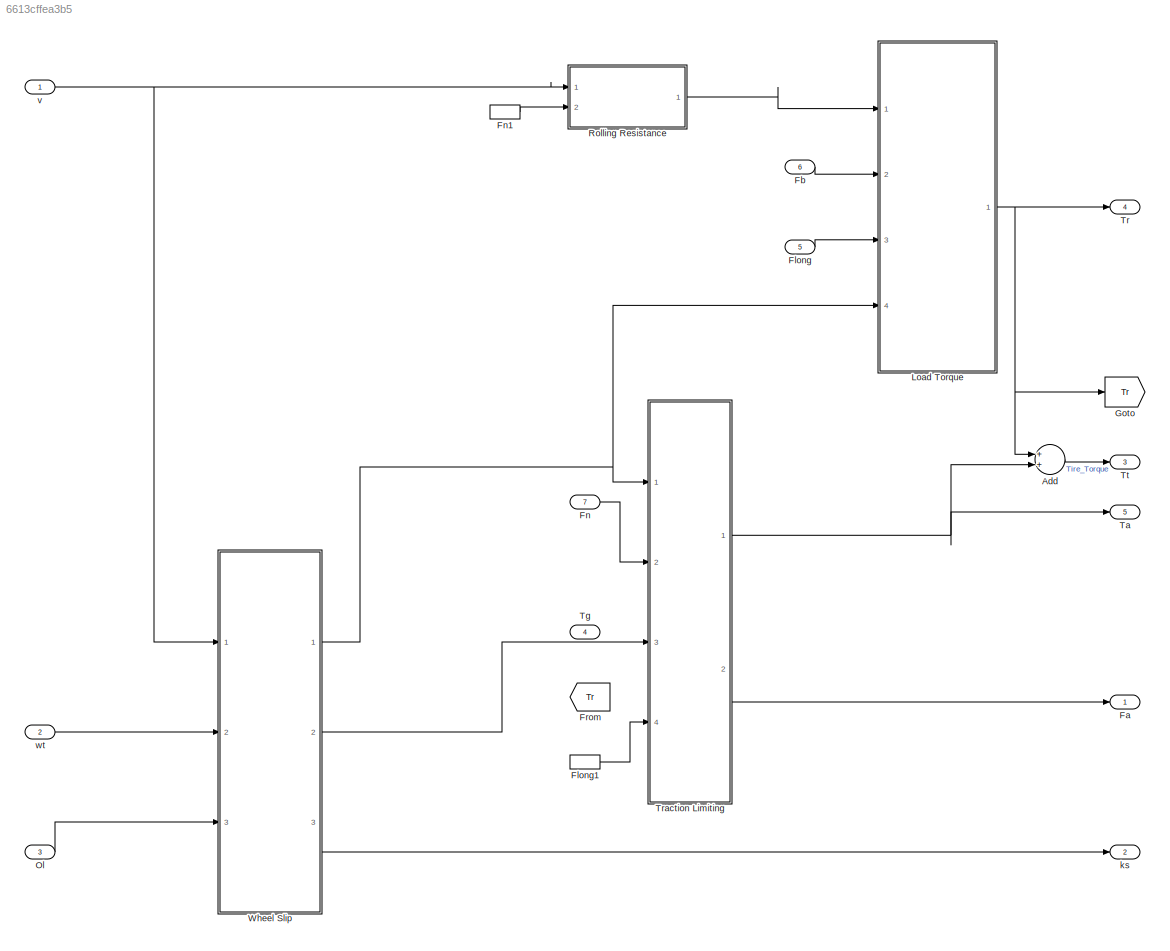
MODEL slx_6613cffea3b5
KIND model
WORKSPACE source: external: MAT-File  (data not in archive)
BLOCK [Sum] Add
  InputSameDT = off
  OutDataTypeStr = Inherit: Inherit via internal rule
  Ports = [2, 1]
  SaturateOnIntegerOverflow = off
BLOCK [Outport] Fa
  IconDisplay = Port number
BLOCK [Inport] Fb
  IconDisplay = Port number
  Port = 6
BLOCK [Inport] Flong
  IconDisplay = Port number
  Port = 5
BLOCK [InportShadow] Flong1
  IconDisplay = Port number
  Port = 5
BLOCK [Inport] Fn
  IconDisplay = Port number
  Port = 7
BLOCK [InportShadow] Fn1
  IconDisplay = Port number
  Port = 7
BLOCK [From] From
  GotoTag = Tr
BLOCK [Goto] Goto
  GotoTag = Tr
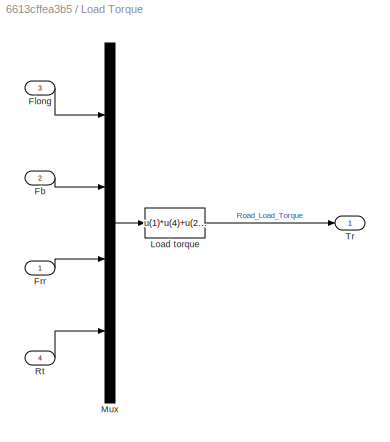
BLOCK [SubSystem] Load Torque
  Ports = [4, 1]
  RequestExecContextInheritance = off
BLOCK [Inport] Load Torque/Fb
  IconDisplay = Port number
  Port = 2
BLOCK [Inport] Load Torque/Flong
  IconDisplay = Port number
  Port = 3
BLOCK [Inport] Load Torque/Frr
  IconDisplay = Port number
BLOCK [Fcn] Load Torque/Load torque
  Expr = u(1)*u(4)+u(2)*rb+u(3)*u(4)
BLOCK [Mux] Load Torque/Mux
  DisplayOption = bar
  Ports = [4, 1]
BLOCK [Inport] Load Torque/Rt
  IconDisplay = Port number
  Port = 4
BLOCK [Outport] Load Torque/Tr
  IconDisplay = Port number
BLOCK [Inport] Ol
  IconDisplay = Port number
  Port = 3
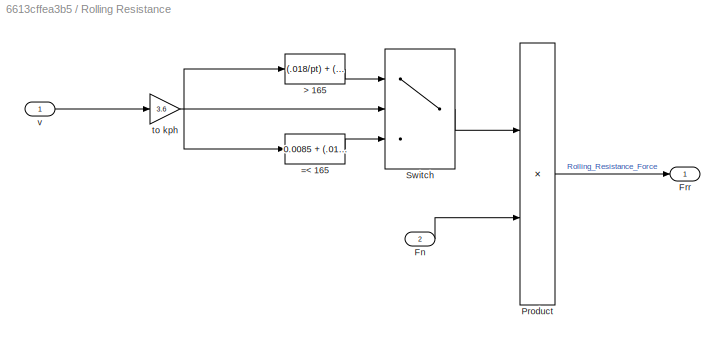
BLOCK [SubSystem] Rolling Resistance
  Ports = [2, 1]
  RequestExecContextInheritance = off
BLOCK [Fcn] Rolling Resistance/=< 165 
  Expr = 0.0085 + (.018/pt) + (1.59e-6/pt)*u(1)^2
BLOCK [Fcn] Rolling Resistance/> 165 
  Expr = (.018/pt) + (2.91e-6/pt)*u(1)^2
BLOCK [Inport] Rolling Resistance/Fn
  IconDisplay = Port number
  Port = 2
BLOCK [Outport] Rolling Resistance/Frr
  IconDisplay = Port number
BLOCK [Product] Rolling Resistance/Product
  InputSameDT = off
  OutDataTypeStr = Inherit: Inherit via internal rule
  Ports = [2, 1]
  RndMeth = Floor
  SaturateOnIntegerOverflow = off
BLOCK [Switch] Rolling Resistance/Switch
  Criteria = u2 > Threshold
  InputSameDT = off
  SaturateOnIntegerOverflow = off
  Threshold = 165
BLOCK [Gain] Rolling Resistance/to kph
  Gain = 3.6
  OutDataTypeStr = Inherit: Inherit via internal rule
  ParamDataTypeStr = Inherit: Inherit via internal rule
  SaturateOnIntegerOverflow = off
BLOCK [Inport] Rolling Resistance/v
  IconDisplay = Port number
BLOCK [Outport] Ta
  IconDisplay = Port number
  Port = 5
BLOCK [Inport] Tg
  IconDisplay = Port number
  Port = 4
BLOCK [Outport] Tr
  IconDisplay = Port number
  Port = 4
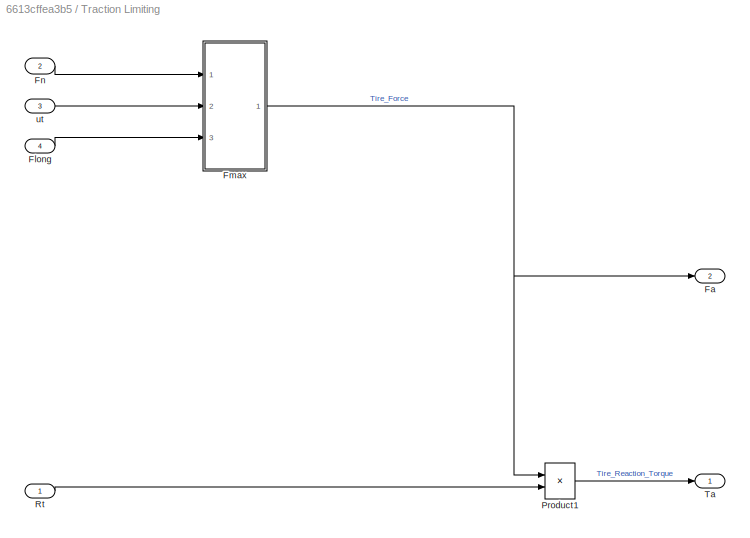
BLOCK [SubSystem] Traction Limiting
  Ports = [4, 2]
  RequestExecContextInheritance = off
BLOCK [Outport] Traction Limiting/Fa
  IconDisplay = Port number
  Port = 2
BLOCK [Inport] Traction Limiting/Flong
  IconDisplay = Port number
  Port = 4
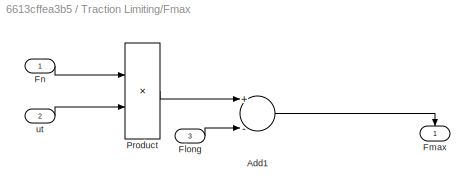
BLOCK [SubSystem] Traction Limiting/Fmax
  Ports = [3, 1]
  RequestExecContextInheritance = off
BLOCK [Sum] Traction Limiting/Fmax/Add1
  InputSameDT = off
  Inputs = +-
  OutDataTypeStr = Inherit: Inherit via internal rule
  Ports = [2, 1]
  SaturateOnIntegerOverflow = off
BLOCK [Inport] Traction Limiting/Fmax/Flong
  IconDisplay = Port number
  Port = 3
BLOCK [Outport] Traction Limiting/Fmax/Fmax
  IconDisplay = Port number
BLOCK [Inport] Traction Limiting/Fmax/Fn
  IconDisplay = Port number
BLOCK [Product] Traction Limiting/Fmax/Product
  InputSameDT = off
  OutDataTypeStr = Inherit: Inherit via internal rule
  Ports = [2, 1]
  RndMeth = Floor
  SaturateOnIntegerOverflow = off
BLOCK [Inport] Traction Limiting/Fmax/ut
  IconDisplay = Port number
  Port = 2
BLOCK [Inport] Traction Limiting/Fn
  IconDisplay = Port number
  Port = 2
BLOCK [Product] Traction Limiting/Product1
  InputSameDT = off
  OutDataTypeStr = Inherit: Inherit via internal rule
  Ports = [2, 1]
  RndMeth = Floor
  SaturateOnIntegerOverflow = off
BLOCK [Inport] Traction Limiting/Rt
  IconDisplay = Port number
BLOCK [Outport] Traction Limiting/Ta
  IconDisplay = Port number
BLOCK [Inport] Traction Limiting/ut
  IconDisplay = Port number
  Port = 3
BLOCK [Outport] Tt 
  IconDisplay = Port number
  Port = 3
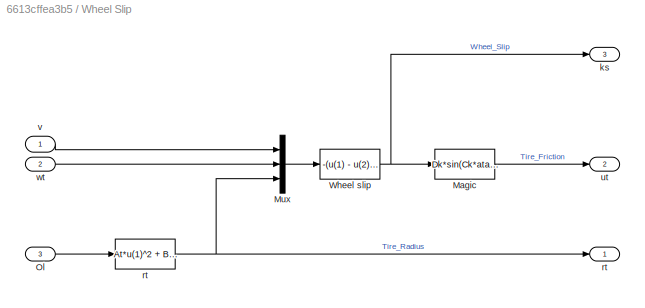
BLOCK [SubSystem] Wheel Slip 
  Ports = [3, 3]
  RequestExecContextInheritance = off
BLOCK [Fcn] Wheel Slip / rt
  Expr = At*u(1)^2 + Bt*u(1) + Ct
BLOCK [Fcn] Wheel Slip /Magic
  Expr = Dk*sin(Ck*atan(( Bk*u(1) - Ek*(Bk*u(1) - atan(Bk*u(1))))))
BLOCK [Mux] Wheel Slip /Mux
  DisplayOption = bar
  Inputs = 3
  Ports = [3, 1]
BLOCK [Inport] Wheel Slip /Ol
  IconDisplay = Port number
  Port = 3
BLOCK [Fcn] Wheel Slip /Wheel slip
  Expr = -(u(1) - u(2)*u(3))/(u(1))
BLOCK [Outport] Wheel Slip /ks
  IconDisplay = Port number
  Port = 3
BLOCK [Outport] Wheel Slip /rt
  IconDisplay = Port number
BLOCK [Outport] Wheel Slip /ut
  IconDisplay = Port number
  Port = 2
BLOCK [Inport] Wheel Slip /v
  IconDisplay = Port number
BLOCK [Inport] Wheel Slip /wt
  IconDisplay = Port number
  Port = 2
BLOCK [Outport] ks
  IconDisplay = Port number
  Port = 2
BLOCK [Inport] v
  IconDisplay = Port number
BLOCK [Inport] wt
  IconDisplay = Port number
  Port = 2
LINE Add:1 -> Tt :1
LINE Fb:1 -> Load Torque:2
LINE Flong1:1 -> Traction Limiting:4
LINE Flong:1 -> Load Torque:3
LINE Fn1:1 -> Rolling Resistance:2
LINE Fn:1 -> Traction Limiting:2
LINE Load Torque/Fb:1 -> Load Torque/Mux:2
LINE Load Torque/Flong:1 -> Load Torque/Mux:1
LINE Load Torque/Frr:1 -> Load Torque/Mux:3
LINE Load Torque/Load torque:1 -> Load Torque/Tr:1
LINE Load Torque/Mux:1 -> Load Torque/Load torque:1
LINE Load Torque/Rt:1 -> Load Torque/Mux:4
NET Load Torque:1 -> Add:1, Goto:1, Tr:1
LINE Ol:1 -> Wheel Slip :3
LINE Rolling Resistance/=< 165 :1 -> Rolling Resistance/Switch:3
LINE Rolling Resistance/> 165 :1 -> Rolling Resistance/Switch:1
LINE Rolling Resistance/Fn:1 -> Rolling Resistance/Product:2
LINE Rolling Resistance/Product:1 -> Rolling Resistance/Frr:1
LINE Rolling Resistance/Switch:1 -> Rolling Resistance/Product:1
NET Rolling Resistance/to kph:1 -> Rolling Resistance/=< 165 :1, Rolling Resistance/> 165 :1, Rolling Resistance/Switch:2
LINE Rolling Resistance/v:1 -> Rolling Resistance/to kph:1
LINE Rolling Resistance:1 -> Load Torque:1
LINE Traction Limiting/Flong:1 -> Traction Limiting/Fmax:3
LINE Traction Limiting/Fmax/Add1:1 -> Traction Limiting/Fmax/Fmax:1
LINE Traction Limiting/Fmax/Flong:1 -> Traction Limiting/Fmax/Add1:2
LINE Traction Limiting/Fmax/Fn:1 -> Traction Limiting/Fmax/Product:1
LINE Traction Limiting/Fmax/Product:1 -> Traction Limiting/Fmax/Add1:1
LINE Traction Limiting/Fmax/ut:1 -> Traction Limiting/Fmax/Product:2
NET Traction Limiting/Fmax:1 -> Traction Limiting/Fa:1, Traction Limiting/Product1:1
LINE Traction Limiting/Fn:1 -> Traction Limiting/Fmax:1
LINE Traction Limiting/Product1:1 -> Traction Limiting/Ta:1
LINE Traction Limiting/Rt:1 -> Traction Limiting/Product1:2
LINE Traction Limiting/ut:1 -> Traction Limiting/Fmax:2
NET Traction Limiting:1 -> Add:2, Ta:1
LINE Traction Limiting:2 -> Fa:1
NET Wheel Slip / rt:1 -> Wheel Slip /Mux:3, Wheel Slip /rt:1
LINE Wheel Slip /Magic:1 -> Wheel Slip /ut:1
LINE Wheel Slip /Mux:1 -> Wheel Slip /Wheel slip:1
LINE Wheel Slip /Ol:1 -> Wheel Slip / rt:1
NET Wheel Slip /Wheel slip:1 -> Wheel Slip /Magic:1, Wheel Slip /ks:1
LINE Wheel Slip /v:1 -> Wheel Slip /Mux:1
LINE Wheel Slip /wt:1 -> Wheel Slip /Mux:2
NET Wheel Slip :1 -> Load Torque:4, Traction Limiting:1
LINE Wheel Slip :2 -> Traction Limiting:3
LINE Wheel Slip :3 -> ks:1
NET v:1 -> Rolling Resistance:1, Wheel Slip :1
LINE wt:1 -> Wheel Slip :2
note: NET lines group one-source signal fan-out (src -> all destinations, sorted); 1:1 wires keep LINE
